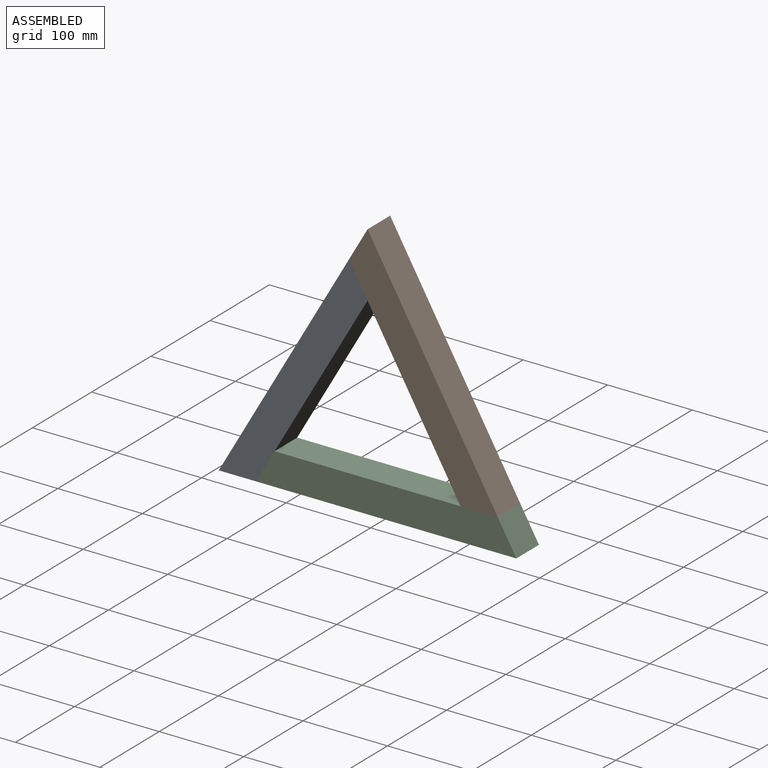
[diagram: assembled view]
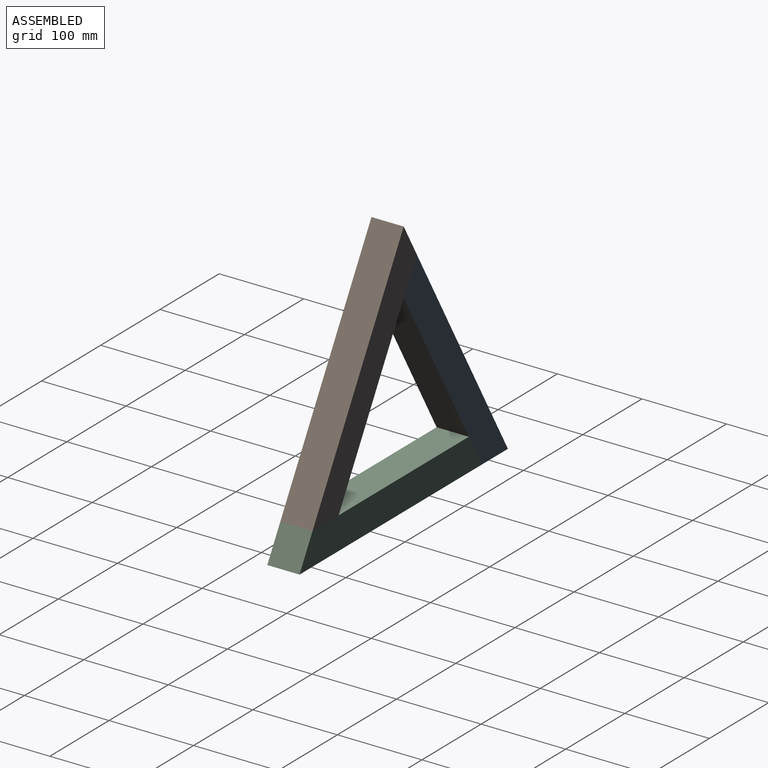
[diagram: assembled view, second angle]
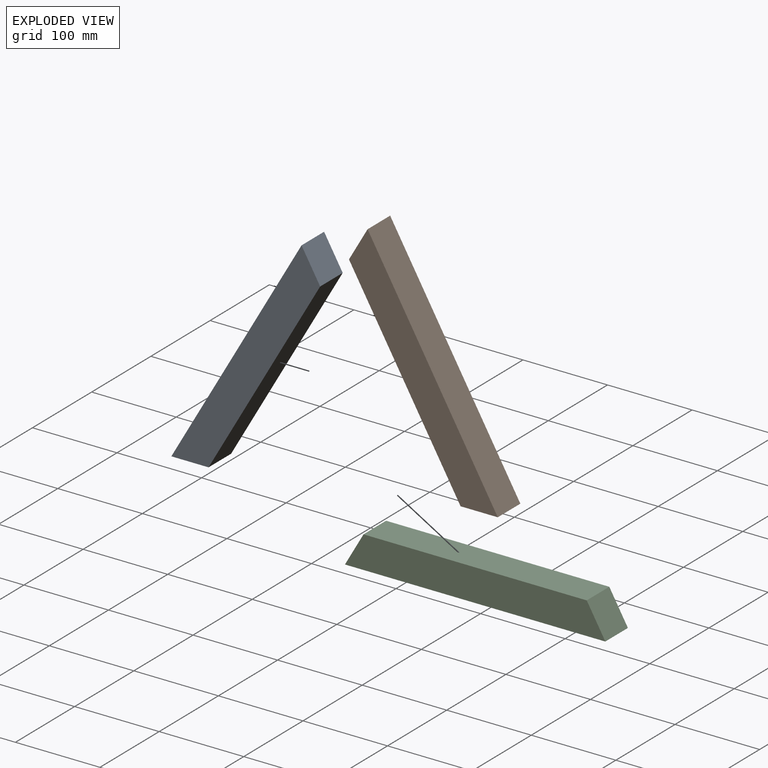
[diagram: exploded view]
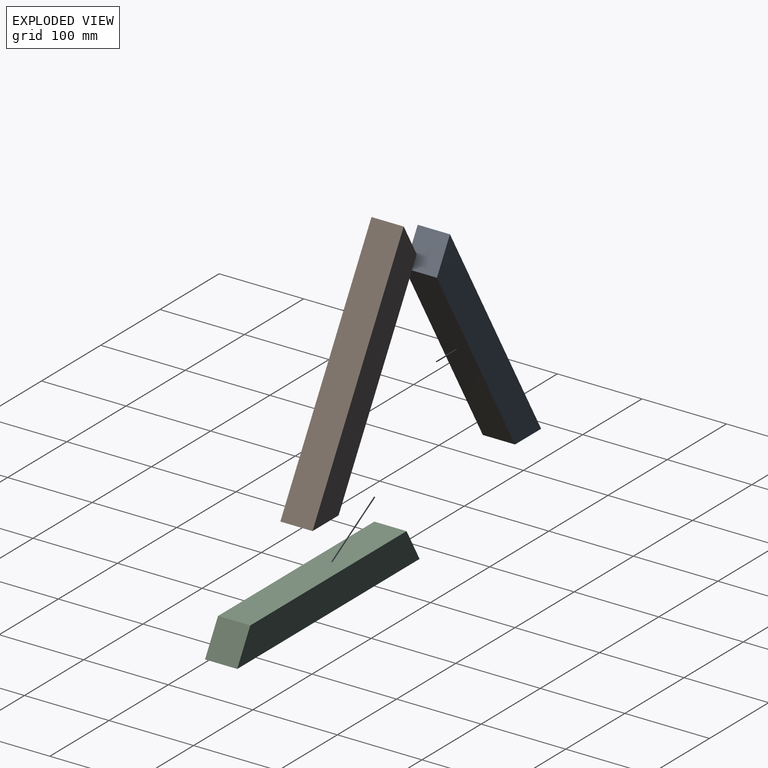
[diagram: exploded view, second angle]
ASSEMBLY  parts=3 mates=2
PART A: 6 faces, bbox 176x38.1x266.7 mm
  f0: plane 43.99x38.1mm, normal (0,0,-1), area 1676.2mm2, adj f1,f3,f4,f5
  f1: plane 228.6x131.98mm, normal (0.87,0,-0.5), area 10057mm2, adj f0,f2,f4,f5
  f2: plane 38.1x38.1mm, normal (0.87,0,0.5), area 1676.2mm2, adj f1,f3,f4,f5
  f3: plane 266.7x153.98mm, normal (-0.87,0,0.5), area 11733.2mm2, adj f0,f2,f4,f5
  f4: plane 266.7x175.98mm, normal (0,-1,0), area 10895.1mm2, adj f0,f1,f2,f3
  f5: plane 266.7x175.98mm, normal (0,1,0), area 10895.1mm2, adj f0,f1,f2,f3
PART B: same geometry as A
PART C: same geometry as A
PLACE A t=(341.2,-157.32,128.13)mm
PLACE B rot(axis=(0,1,0),120deg) t=(517.18,-157.32,-100.47)mm
PLACE C rot(axis=(0,-1,0),120deg) t=(231.21,-157.32,-138.57)mm
MATE fastened A.f1 <-> C.f2  axis (0.87,0,-0.5) through (231.21,-176.37,-138.57)mm
MATE fastened C.f1 <-> B.f2  axis (0,0,1) through (517.18,-176.37,-100.47)mm
